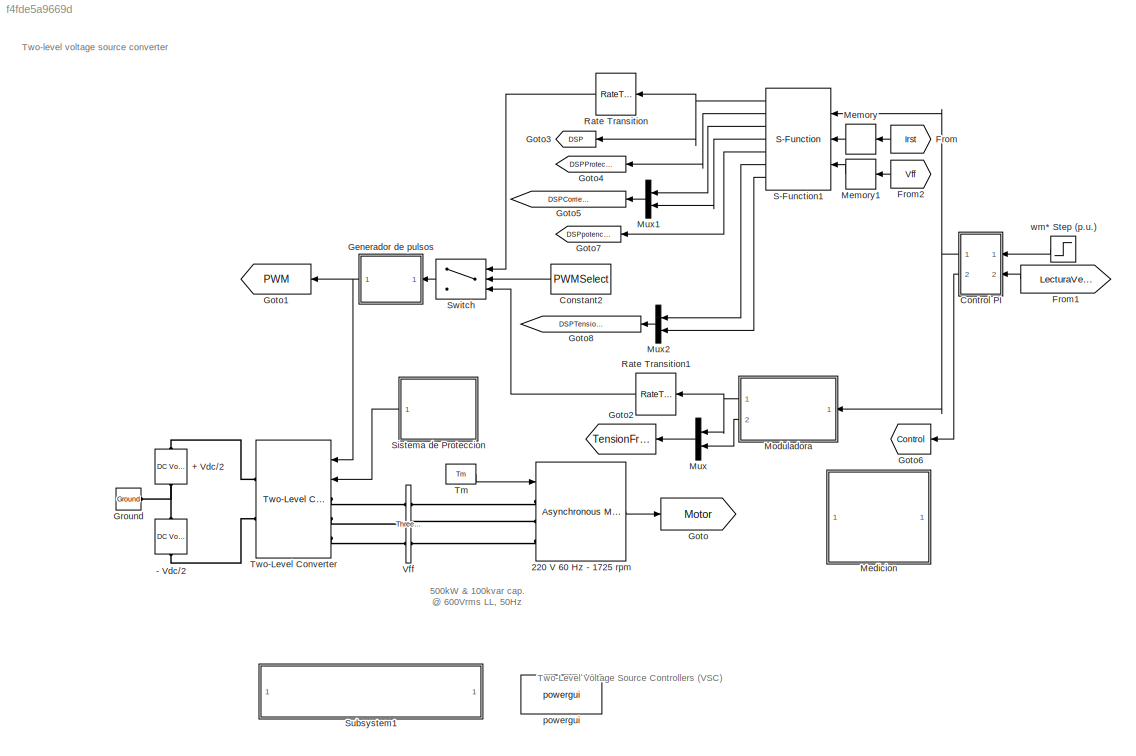
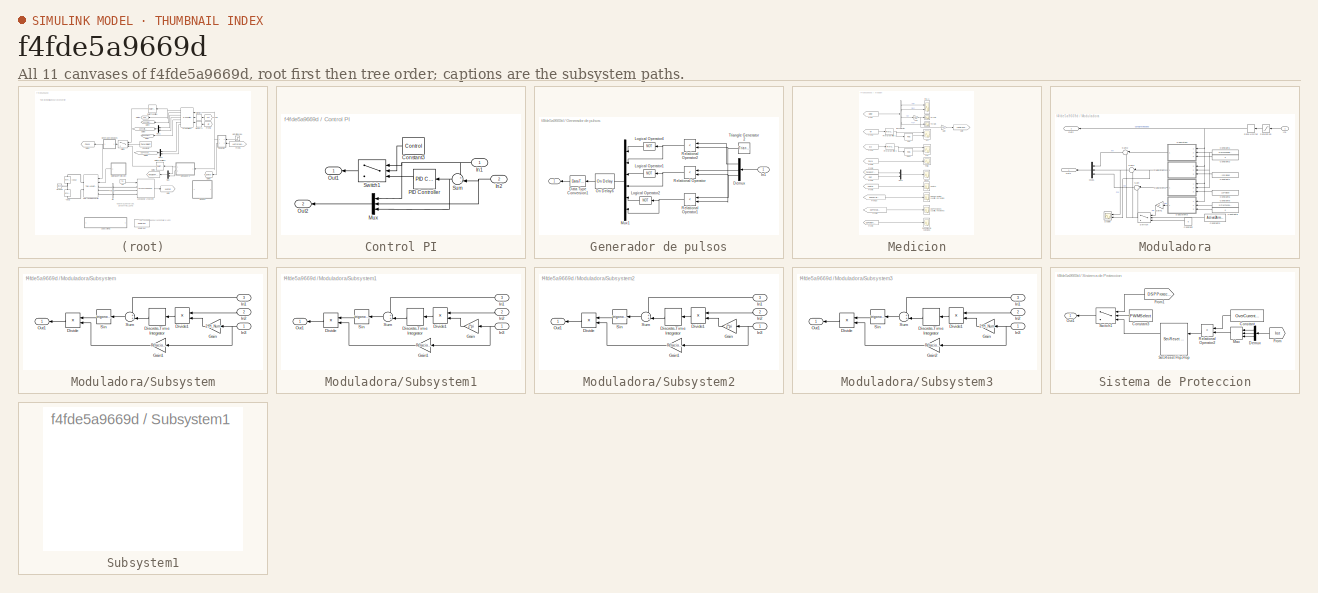
[diagram: thumbnail index - all 11 canvases of the model, root first then tree order]
MODEL slx_f4fde5a9669d
KIND model
CONFIG AbsTol = auto
CONFIG EnableMultiTasking = off
CONFIG FixedStep = StepTime
CONFIG InitFcn = clear all;\nclc;\nmex Moduladora.c;\n\n%% Parametros Simulacion\nStepTime = 1.6e-6;\nSimulationTime = 2;\nConstanteTiempo = 159e-6;\n\n%% Motor\nP = 186.5;\nVff = 220;\nFrecFundamental =  60;\nVelocidadMotor = 1800;\nParPolos = 2;\nRs = 11.05;\nLs = 3.164e-3;\nRr = 6.11;\nLr = Ls;\nLm = 293.94e-3;\nInercia = 0.0005;\nTm = 0.05;\n\n%% Consigna Velocidad\nvelocidadInicial=600/VelocidadMotor;\nvelocidadStepTime = 1;\nvelocida...<+722ch>
CONFIG MaxStep = auto
CONFIG MinStep = auto
CONFIG PreLoadFcn = clear all;\nclc;\nmex Moduladora.c;\n\n%% Parametros Simulacion\nStepTime = 1.6e-6;\nSimulationTime = 2;\nConstanteTiempo = 159e-6;\n\n%% Motor\nP = 186.5;\nVff = 220;\nFrecFundamental =  60;\nVelocidadMotor = 1800;\nParPolos = 2;\nRs = 11.05;\nLs = 3.164e-3;\nRr = 6.11;\nLr = Ls;\nLm = 293.94e-3;\nInercia = 0.0005;\nTm = 0.05;\n\n%% Consigna Velocidad\nvelocidadInicial=1725/VelocidadMotor;\nvelocidadStepTime = 1;\nvelocid...<+724ch>
CONFIG RelTol = 1e-4
CONFIG SampleTimeConstraint = Unconstrained
CONFIG SolverName = ode3
CONFIG StartTime = 0.0
CONFIG StopTime = SimulationTime
BLOCK [Reference] + Vdc//2  REF=spsDCVoltageSourceLib/DC Voltage Source
  NameLocation = right
  Ports = [0, 0, 0, 0, 0, 1, 1]
  SourceBlock = spsDCVoltageSourceLib/DC Voltage Source
  SourceProductBaseCode = PS
  SourceType = DC Voltage Source
BLOCK [Reference] - Vdc//2  REF=spsDCVoltageSourceLib/DC Voltage Source
  NameLocation = right
  Ports = [0, 0, 0, 0, 0, 1, 1]
  SourceBlock = spsDCVoltageSourceLib/DC Voltage Source
  SourceProductBaseCode = PS
  SourceType = DC Voltage Source
BLOCK [Reference] 220 V 60 Hz - 1725 rpm  REF=spsAsynchronousMachineSIUnitsLib/Asynchronous Machine
SI Units
  AttributesFormatString = \n
  Ports = [1, 1, 0, 0, 0, 3]
  SourceBlock = spsAsynchronousMachineSIUnitsLib/Asynchronous Machine\nSI Units
  SourceProductBaseCode = PS
  SourceType = Asynchronous Machine
BLOCK [Constant] Constant2
  NameLocation = top
  Value = PWMSelect
BLOCK [SubSystem] Control PI
  NameLocation = top
  Ports = [2, 2]
  RequestExecContextInheritance = off
  SystemSampleTime = Tconmut
  TreatAsAtomicUnit = on
BLOCK [Constant] Control PI/Constant3
  NameLocation = top
  Value = Control
BLOCK [Inport] Control PI/In1
BLOCK [Inport] Control PI/In2
  Port = 2
BLOCK [Mux] Control PI/Mux
  DisplayOption = bar
  Inputs = 3
  NameLocation = top
  Ports = [3, 1]
BLOCK [Outport] Control PI/Out1
BLOCK [Outport] Control PI/Out2
  Port = 2
BLOCK [Reference] Control PI/PID Controller  REF=pid_lib/PID Controller
  NameLocation = top
  Ports = [1, 1]
  SourceBlock = pid_lib/PID Controller
  SourceProductBaseCode = SL
  SourceType = PID 1dof
BLOCK [Sum] Control PI/Sum
  Inputs = +-|
  NameLocation = top
  Ports = [2, 1]
BLOCK [Switch] Control PI/Switch1
  Criteria = u2 > Threshold
  InputSameDT = off
  NameLocation = top
  SaturateOnIntegerOverflow = off
BLOCK [From] From
  GotoTag = Irst
  NameLocation = top
  TagVisibility = global
BLOCK [From] From1
  GotoTag = LecturaVelMot
  NameLocation = top
  TagVisibility = global
BLOCK [From] From2
  GotoTag = Vff
  NameLocation = top
  TagVisibility = global
BLOCK [SubSystem] Generador de pulsos
  NameLocation = top
  Ports = [1, 1]
  RequestExecContextInheritance = off
  SystemSampleTime = Tconmut
BLOCK [Outport] Generador de pulsos/  
BLOCK [DataTypeConversion] Generador de pulsos/Data Type Conversion1
  NameLocation = top
  OutDataTypeStr = double
  RndMeth = Floor
  SaturateOnIntegerOverflow = off
BLOCK [Demux] Generador de pulsos/Demux
  NameLocation = top
  Outputs = 3
  Ports = [1, 3]
BLOCK [Inport] Generador de pulsos/In1
  IconDisplay = Signal name
  NameLocation = top
BLOCK [Logic] Generador de pulsos/Logical Operator1
  NameLocation = top
  Operator = NOT
  Ports = [1, 1]
BLOCK [Logic] Generador de pulsos/Logical Operator2
  NameLocation = top
  Operator = NOT
  Ports = [1, 1]
BLOCK [Logic] Generador de pulsos/Logical Operator4
  NameLocation = top
  Operator = NOT
  Ports = [1, 1]
BLOCK [Mux] Generador de pulsos/Mux1
  DisplayOption = bar
  Inputs = 6
  NameLocation = top
  Ports = [6, 1]
BLOCK [Reference] Generador de pulsos/On Delay6  REF=spsOnDelayLib/On Delay
  NameLocation = top
  Ports = [1, 1]
  SourceBlock = spsOnDelayLib/On Delay
  SourceProductBaseCode = PS
  SourceType = On/Off Delay
BLOCK [RelationalOperator] Generador de pulsos/Relational Operator
  InputSameDT = off
  NameLocation = top
  Operator = <
  OutDataTypeStr = boolean
  Ports = [2, 1]
  RndMeth = Simplest
BLOCK [RelationalOperator] Generador de pulsos/Relational Operator1
  InputSameDT = off
  NameLocation = top
  Operator = <
  OutDataTypeStr = boolean
  Ports = [2, 1]
  RndMeth = Simplest
BLOCK [RelationalOperator] Generador de pulsos/Relational Operator2
  InputSameDT = off
  NameLocation = top
  Operator = <
  OutDataTypeStr = boolean
  Ports = [2, 1]
  RndMeth = Simplest
BLOCK [Reference] Generador de pulsos/Triangle Generator2  REF=spsTriangleGeneratorLib/Triangle
Generator
  NameLocation = top
  Ports = [0, 1]
  SourceBlock = spsTriangleGeneratorLib/Triangle\nGenerator
  SourceProductBaseCode = PS
  SourceType = Triangle Generator
BLOCK [Goto] Goto
  GotoTag = Motor
  TagVisibility = global
BLOCK [Goto] Goto1
  GotoTag = PWM
  NameLocation = top
  TagVisibility = global
BLOCK [Goto] Goto2
  GotoTag = TensionFrec
  NameLocation = top
  TagVisibility = global
BLOCK [Goto] Goto3
  GotoTag = DSP
  NameLocation = top
  TagVisibility = global
BLOCK [Goto] Goto4
  GotoTag = DSPProtecion
  NameLocation = top
  TagVisibility = global
BLOCK [Goto] Goto5
  GotoTag = DSPCorrientesQyError
  NameLocation = top
  TagVisibility = global
BLOCK [Goto] Goto6
  GotoTag = Control
  NameLocation = top
  TagVisibility = global
BLOCK [Goto] Goto7
  GotoTag = DSPpotencia
  NameLocation = top
  TagVisibility = global
BLOCK [Goto] Goto8
  GotoTag = DSPTensionesQyError
  NameLocation = top
  TagVisibility = global
BLOCK [Reference] Ground  REF=spsGroundLib/Ground
  Ports = [0, 0, 0, 0, 0, 1]
  SourceBlock = spsGroundLib/Ground
  SourceProductBaseCode = PS
  SourceType = Ground
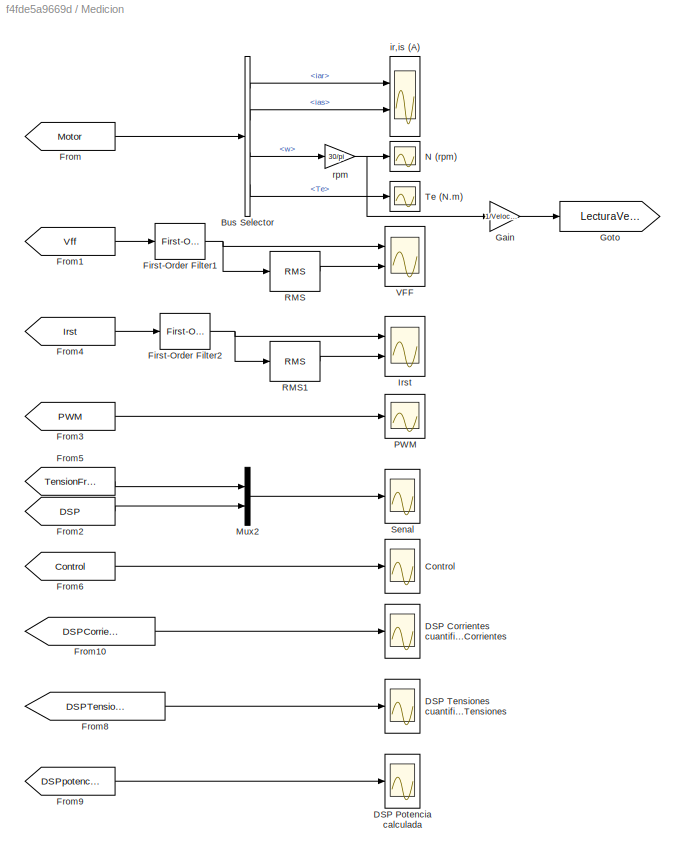
BLOCK [SubSystem] Medicion
  Ports = []
  RequestExecContextInheritance = off
BLOCK [BusSelector] Medicion/Bus Selector
  OutputSignals = iar,ias,w,Te
  Ports = [1, 4]
BLOCK [Scope] Medicion/Control
  Floating = off
  NameLocation = right
  NumInputPorts = 1
  Ports = [1]
  ScopeSpecificationString = Simulink.scopes.TimeScopeBlockCfg('CurrentConfiguration', extmgr.ConfigurationSet(extmgr.Configuration('Core','General UI',true),extmgr.Configuration('Core','Source UI',true),extmgr.Configuration('Sources','WiredSimulink',true,'DataLoggingVariableName','ScopeData1','DataLoggingSaveFormat','StructureWithTime','DataLoggingDecimation','1','DataLoggingDecimateData',true),extmgr.Configuration('Visuals'...<+2460ch>
BLOCK [Scope] Medicion/DSP Corrientes cuantificadas y Error Corrientes
  Floating = off
  NameLocation = right
  NumInputPorts = 1
  Ports = [1]
  ScopeSpecificationString = Simulink.scopes.TimeScopeBlockCfg('CurrentConfiguration', extmgr.ConfigurationSet(extmgr.Configuration('Core','General UI',true),extmgr.Configuration('Core','Source UI',true),extmgr.Configuration('Sources','WiredSimulink',true,'DataLoggingVariableName','ScopeData1','DataLoggingSaveFormat','StructureWithTime','DataLoggingDecimation','1','DataLoggingDecimateData',true),extmgr.Configuration('Visuals'...<+2407ch>
BLOCK [Scope] Medicion/DSP Potencia calculada
  Floating = off
  NameLocation = right
  NumInputPorts = 1
  Ports = [1]
  ScopeSpecificationString = Simulink.scopes.TimeScopeBlockCfg('CurrentConfiguration', extmgr.ConfigurationSet(extmgr.Configuration('Core','General UI',true),extmgr.Configuration('Core','Source UI',true),extmgr.Configuration('Sources','WiredSimulink',true,'DataLoggingVariableName','ScopeData2','DataLoggingSaveFormat','StructureWithTime','DataLoggingDecimation','1','DataLoggingDecimateData',true),extmgr.Configuration('Visuals'...<+2477ch>
BLOCK [Scope] Medicion/DSP Tensiones cuantificadas y Error Tensiones
  Floating = off
  NameLocation = right
  NumInputPorts = 1
  Ports = [1]
  ScopeSpecificationString = Simulink.scopes.TimeScopeBlockCfg('CurrentConfiguration', extmgr.ConfigurationSet(extmgr.Configuration('Core','General UI',true),extmgr.Configuration('Core','Source UI',true),extmgr.Configuration('Sources','WiredSimulink',true,'DataLoggingVariableName','ScopeData1','DataLoggingSaveFormat','StructureWithTime','DataLoggingDecimation','1','DataLoggingDecimateData',true),extmgr.Configuration('Visuals'...<+2536ch>
BLOCK [Reference] Medicion/First-Order Filter1  REF=spsFirstOrderFilterLib/First-Order
Filter
  Ports = [1, 1]
  SourceBlock = spsFirstOrderFilterLib/First-Order\nFilter
  SourceProductBaseCode = PS
  SourceType = First-Order Filter
BLOCK [Reference] Medicion/First-Order Filter2  REF=spsFirstOrderFilterLib/First-Order
Filter
  Ports = [1, 1]
  SourceBlock = spsFirstOrderFilterLib/First-Order\nFilter
  SourceProductBaseCode = PS
  SourceType = First-Order Filter
BLOCK [From] Medicion/From
  GotoTag = Motor
  TagVisibility = global
BLOCK [From] Medicion/From1
  GotoTag = Vff
  TagVisibility = global
BLOCK [From] Medicion/From10
  GotoTag = DSPCorrientesQyError
  TagVisibility = global
BLOCK [From] Medicion/From2
  GotoTag = DSP
  TagVisibility = global
BLOCK [From] Medicion/From3
  GotoTag = PWM
  TagVisibility = global
BLOCK [From] Medicion/From4
  GotoTag = Irst
  TagVisibility = global
BLOCK [From] Medicion/From5
  GotoTag = TensionFrec
  TagVisibility = global
BLOCK [From] Medicion/From6
  GotoTag = Control
  TagVisibility = global
BLOCK [From] Medicion/From8
  GotoTag = DSPTensionesQyError
  TagVisibility = global
BLOCK [From] Medicion/From9
  GotoTag = DSPpotencia
  TagVisibility = global
BLOCK [Gain] Medicion/Gain
  Gain = 1/VelocidadMotor
BLOCK [Goto] Medicion/Goto
  GotoTag = LecturaVelMot
  TagVisibility = global
BLOCK [Scope] Medicion/Irst
  Floating = off
  NameLocation = right
  NumInputPorts = 2
  Ports = [2]
  ScopeSpecificationString = Simulink.scopes.TimeScopeBlockCfg('CurrentConfiguration', extmgr.ConfigurationSet(extmgr.Configuration('Core','General UI',true),extmgr.Configuration('Core','Source UI',true),extmgr.Configuration('Sources','WiredSimulink',true,'DataLoggingVariableName','Irst','DataLoggingSaveFormat','StructureWithTime','DataLoggingDecimation','1','DataLoggingDecimateData',true,'DataLogging',true),extmgr.Configurat...<+2542ch>
BLOCK [Mux] Medicion/Mux2
  DisplayOption = bar
  Inputs = 2
  Ports = [2, 1]
BLOCK [Scope] Medicion/N (rpm)
  Floating = off
  NameLocation = right
  NumInputPorts = 1
  Ports = [1]
  ScopeSpecificationString = Simulink.scopes.TimeScopeBlockCfg('CurrentConfiguration', extmgr.ConfigurationSet(extmgr.Configuration('Core','General UI',true),extmgr.Configuration('Core','Source UI',true),extmgr.Configuration('Sources','WiredSimulink',true,'DataLoggingSaveFormat','Array','DataLoggingDecimation','1','DataLoggingDecimateData',true,'DataLoggingVariableName','ScopeData1'),extmgr.Configuration('Visuals','Time Domai...<+1968ch>
BLOCK [Scope] Medicion/PWM
  Floating = off
  NameLocation = right
  NumInputPorts = 1
  Ports = [1]
  ScopeSpecificationString = Simulink.scopes.TimeScopeBlockCfg('CurrentConfiguration', extmgr.ConfigurationSet(extmgr.Configuration('Core','General UI',true),extmgr.Configuration('Core','Source UI',true),extmgr.Configuration('Sources','WiredSimulink',true,'DataLoggingVariableName','ScopeData2','DataLoggingSaveFormat','StructureWithTime','DataLoggingDecimation','1','DataLoggingDecimateData',true),extmgr.Configuration('Visuals'...<+2566ch>
BLOCK [Reference] Medicion/RMS  REF=spsRMSLib/RMS
  Ports = [1, 1]
  SourceBlock = spsRMSLib/RMS
  SourceProductBaseCode = PS
  SourceType = RMS
BLOCK [Reference] Medicion/RMS1  REF=spsRMSLib/RMS
  Ports = [1, 1]
  SourceBlock = spsRMSLib/RMS
  SourceProductBaseCode = PS
  SourceType = RMS
BLOCK [Scope] Medicion/Senal
  Floating = off
  NameLocation = right
  NumInputPorts = 1
  Ports = [1]
  ScopeSpecificationString = Simulink.scopes.TimeScopeBlockCfg('CurrentConfiguration', extmgr.ConfigurationSet(extmgr.Configuration('Core','General UI',true),extmgr.Configuration('Core','Source UI',true),extmgr.Configuration('Sources','WiredSimulink',true,'DataLoggingVariableName','ScopeData1','DataLoggingSaveFormat','StructureWithTime','DataLoggingDecimation','1','DataLoggingDecimateData',true),extmgr.Configuration('Visuals'...<+2473ch>
BLOCK [Scope] Medicion/Te (N.m)
  Floating = off
  NameLocation = right
  NumInputPorts = 1
  Ports = [1]
  ScopeSpecificationString = Simulink.scopes.TimeScopeBlockCfg('CurrentConfiguration', extmgr.ConfigurationSet(extmgr.Configuration('Core','General UI',true),extmgr.Configuration('Core','Source UI',true),extmgr.Configuration('Sources','WiredSimulink',true,'DataLoggingSaveFormat','Array','DataLoggingDecimation','1','DataLoggingDecimateData',true,'DataLoggingVariableName','ScopeData2'),extmgr.Configuration('Visuals','Time Domai...<+1629ch>
BLOCK [Scope] Medicion/VFF
  Floating = off
  NameLocation = right
  NumInputPorts = 2
  Ports = [2]
  ScopeSpecificationString = Simulink.scopes.TimeScopeBlockCfg('CurrentConfiguration', extmgr.ConfigurationSet(extmgr.Configuration('Core','General UI',true),extmgr.Configuration('Core','Source UI',true),extmgr.Configuration('Sources','WiredSimulink',true,'DataLoggingVariableName','Vff','DataLoggingSaveFormat','StructureWithTime','DataLoggingDecimation','1','DataLoggingDecimateData',true,'DataLogging',true),extmgr.Configurati...<+3092ch>
BLOCK [Scope] Medicion/ir,is (A)
  Floating = off
  NameLocation = right
  NumInputPorts = 2
  Ports = [2]
  ScopeSpecificationString = Simulink.scopes.TimeScopeBlockCfg('CurrentConfiguration', extmgr.ConfigurationSet(extmgr.Configuration('Core','General UI',true),extmgr.Configuration('Core','Source UI',true),extmgr.Configuration('Sources','WiredSimulink',true,'DataLoggingSaveFormat','Array','DataLoggingDecimation','1','DataLoggingDecimateData',true,'DataLoggingVariableName','ScopeData3'),extmgr.Configuration('Visuals','Time Domai...<+2349ch>
BLOCK [Gain] Medicion/rpm
  Gain = 30/pi
  OutDataTypeStr = Inherit: Same as input
  ParamDataTypeStr = Inherit: Same as input
  SaturateOnIntegerOverflow = on
BLOCK [Memory] Memory
  LinearizeAsDelay = on
  NameLocation = top
BLOCK [Memory] Memory1
  LinearizeAsDelay = on
  NameLocation = top
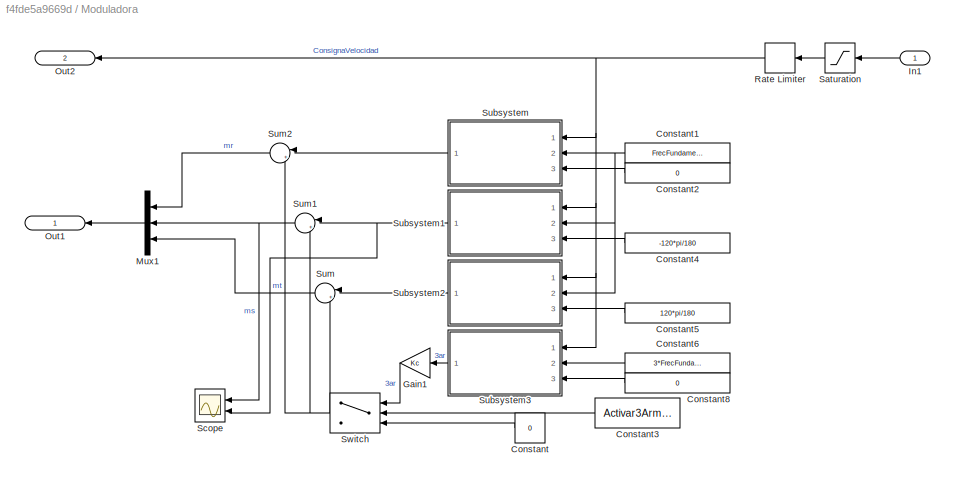
BLOCK [SubSystem] Moduladora
  NameLocation = top
  Ports = [1, 2]
  RequestExecContextInheritance = off
  SystemSampleTime = Tconmut
  TreatAsAtomicUnit = on
BLOCK [Constant] Moduladora/Constant
  NameLocation = top
  Value = 0
BLOCK [Constant] Moduladora/Constant1
  Value = FrecFundamental
BLOCK [Constant] Moduladora/Constant2
  Value = 0
BLOCK [Constant] Moduladora/Constant3
  NameLocation = top
  Value = Activar3Armonico
BLOCK [Constant] Moduladora/Constant4
  Value = -120*pi/180
BLOCK [Constant] Moduladora/Constant5
  Value = 120*pi/180
BLOCK [Constant] Moduladora/Constant6
  Value = 3*FrecFundamental
BLOCK [Constant] Moduladora/Constant8
  Value = 0
BLOCK [Gain] Moduladora/Gain1
  Gain = Kc
  NameLocation = top
BLOCK [Inport] Moduladora/In1
  NameLocation = top
BLOCK [Mux] Moduladora/Mux1
  DisplayOption = bar
  Inputs = 3
  NameLocation = top
  Ports = [3, 1]
BLOCK [Outport] Moduladora/Out1
  IconDisplay = Signal name
  NameLocation = top
BLOCK [Outport] Moduladora/Out2
  IconDisplay = Signal name
  NameLocation = top
  Port = 2
BLOCK [RateLimiter] Moduladora/Rate Limiter
  FallingSlewLimit = -RampaAceleracion
  NameLocation = top
  RisingSlewLimit = RampaAceleracion
  SampleTimeMode = inherited
BLOCK [Saturate] Moduladora/Saturation
  LowerLimit = OffSet
  NameLocation = top
  UpperLimit = 1
BLOCK [Scope] Moduladora/Scope
  Floating = off
  NameLocation = top
  NumInputPorts = 2
  Ports = [2]
  ScopeSpecificationString = Simulink.scopes.TimeScopeBlockCfg('CurrentConfiguration', extmgr.ConfigurationSet(extmgr.Configuration('Core','General UI',true),extmgr.Configuration('Core','Source UI',true),extmgr.Configuration('Sources','WiredSimulink',true,'DataLoggingVariableName','ScopeData1'),extmgr.Configuration('Visuals','Time Domain',true,'SerializedDisplays',{struct('MinYLimReal','-1.4425','MaxYLimReal','1.4425','YLabel...<+2237ch>
BLOCK [SubSystem] Moduladora/Subsystem
  NameLocation = top
  Ports = [3, 1]
  RequestExecContextInheritance = off
BLOCK [DiscreteIntegrator] Moduladora/Subsystem/Discrete-Time Integrator
  ICPrevOutput = DiscIntNeverNeededParam
  ICPrevScaledInput = DiscIntNeverNeededParam
  InitialConditionSetting = Auto
  NameLocation = top
  Ports = [1, 1]
  SampleTime = Tconmut
BLOCK [Product] Moduladora/Subsystem/Divide
  Inputs = **
  NameLocation = top
  Ports = [2, 1]
BLOCK [Product] Moduladora/Subsystem/Divide1
  Inputs = **
  NameLocation = top
  Ports = [2, 1]
BLOCK [Gain] Moduladora/Subsystem/Gain
  Gain = 2*PI_Num
  NameLocation = top
BLOCK [Gain] Moduladora/Subsystem/Gain1
  Gain = RelacionVF
  NameLocation = top
BLOCK [Inport] Moduladora/Subsystem/In1
  NameLocation = top
  Port = 3
BLOCK [Inport] Moduladora/Subsystem/In2
  Port = 2
BLOCK [Inport] Moduladora/Subsystem/In3
  NameLocation = top
BLOCK [Outport] Moduladora/Subsystem/Out1
  NameLocation = top
BLOCK [Trigonometry] Moduladora/Subsystem/Sin
  NameLocation = top
  Ports = [1, 1]
BLOCK [Sum] Moduladora/Subsystem/Sum
  Inputs = ++|
  NameLocation = top
  Ports = [2, 1]
BLOCK [SubSystem] Moduladora/Subsystem1
  NameLocation = top
  Ports = [3, 1]
  RequestExecContextInheritance = off
BLOCK [DiscreteIntegrator] Moduladora/Subsystem1/Discrete-Time Integrator
  ICPrevOutput = DiscIntNeverNeededParam
  ICPrevScaledInput = DiscIntNeverNeededParam
  InitialConditionSetting = Auto
  NameLocation = top
  Ports = [1, 1]
  SampleTime = Tconmut
BLOCK [Product] Moduladora/Subsystem1/Divide
  Inputs = **
  NameLocation = top
  Ports = [2, 1]
BLOCK [Product] Moduladora/Subsystem1/Divide1
  Inputs = **
  NameLocation = top
  Ports = [2, 1]
BLOCK [Gain] Moduladora/Subsystem1/Gain
  Gain = 2*pi
  NameLocation = top
BLOCK [Gain] Moduladora/Subsystem1/Gain1
  Gain = RelacionVF
  NameLocation = top
BLOCK [Inport] Moduladora/Subsystem1/In1
  NameLocation = top
  Port = 3
BLOCK [Inport] Moduladora/Subsystem1/In2
  Port = 2
BLOCK [Inport] Moduladora/Subsystem1/In3
  NameLocation = top
BLOCK [Outport] Moduladora/Subsystem1/Out1
  NameLocation = top
BLOCK [Trigonometry] Moduladora/Subsystem1/Sin
  NameLocation = top
  Ports = [1, 1]
BLOCK [Sum] Moduladora/Subsystem1/Sum
  Inputs = ++|
  NameLocation = top
  Ports = [2, 1]
BLOCK [SubSystem] Moduladora/Subsystem2
  NameLocation = top
  Ports = [3, 1]
  RequestExecContextInheritance = off
BLOCK [DiscreteIntegrator] Moduladora/Subsystem2/Discrete-Time Integrator
  ICPrevOutput = DiscIntNeverNeededParam
  ICPrevScaledInput = DiscIntNeverNeededParam
  InitialConditionSetting = Auto
  NameLocation = top
  Ports = [1, 1]
  SampleTime = Tconmut
BLOCK [Product] Moduladora/Subsystem2/Divide
  Inputs = **
  NameLocation = top
  Ports = [2, 1]
BLOCK [Product] Moduladora/Subsystem2/Divide1
  Inputs = **
  NameLocation = top
  Ports = [2, 1]
BLOCK [Gain] Moduladora/Subsystem2/Gain
  Gain = 2*pi
  NameLocation = top
BLOCK [Gain] Moduladora/Subsystem2/Gain1
  Gain = RelacionVF
  NameLocation = top
BLOCK [Inport] Moduladora/Subsystem2/In1
  NameLocation = top
  Port = 3
BLOCK [Inport] Moduladora/Subsystem2/In2
  Port = 2
BLOCK [Inport] Moduladora/Subsystem2/In3
  NameLocation = top
BLOCK [Outport] Moduladora/Subsystem2/Out1
  NameLocation = top
BLOCK [Trigonometry] Moduladora/Subsystem2/Sin
  NameLocation = top
  Ports = [1, 1]
BLOCK [Sum] Moduladora/Subsystem2/Sum
  Inputs = ++|
  NameLocation = top
  Ports = [2, 1]
BLOCK [SubSystem] Moduladora/Subsystem3
  NameLocation = top
  Ports = [3, 1]
  RequestExecContextInheritance = off
BLOCK [DiscreteIntegrator] Moduladora/Subsystem3/Discrete-Time Integrator
  ICPrevOutput = DiscIntNeverNeededParam
  ICPrevScaledInput = DiscIntNeverNeededParam
  InitialConditionSetting = Auto
  NameLocation = top
  Ports = [1, 1]
  SampleTime = Tconmut
BLOCK [Product] Moduladora/Subsystem3/Divide
  Inputs = **
  NameLocation = top
  Ports = [2, 1]
BLOCK [Product] Moduladora/Subsystem3/Divide1
  Inputs = **
  NameLocation = top
  Ports = [2, 1]
BLOCK [Gain] Moduladora/Subsystem3/Gain
  Gain = 2*PI_Num
  NameLocation = top
BLOCK [Gain] Moduladora/Subsystem3/Gain2
  Gain = RelacionVF
  NameLocation = top
BLOCK [Inport] Moduladora/Subsystem3/In1
  NameLocation = top
  Port = 3
BLOCK [Inport] Moduladora/Subsystem3/In2
  Port = 2
BLOCK [Inport] Moduladora/Subsystem3/In3
  NameLocation = top
BLOCK [Outport] Moduladora/Subsystem3/Out1
  NameLocation = top
BLOCK [Trigonometry] Moduladora/Subsystem3/Sin
  NameLocation = top
  Ports = [1, 1]
BLOCK [Sum] Moduladora/Subsystem3/Sum
  Inputs = ++|
  NameLocation = top
  Ports = [2, 1]
BLOCK [Sum] Moduladora/Sum
  Inputs = |++
  NameLocation = top
  Ports = [2, 1]
BLOCK [Sum] Moduladora/Sum1
  Inputs = |++
  NameLocation = top
  Ports = [2, 1]
BLOCK [Sum] Moduladora/Sum2
  Inputs = |++
  NameLocation = top
  Ports = [2, 1]
BLOCK [Switch] Moduladora/Switch
  Criteria = u2 > Threshold
  InputSameDT = off
  NameLocation = top
  SaturateOnIntegerOverflow = off
BLOCK [Mux] Mux
  DisplayOption = bar
  Inputs = 2
  NameLocation = top
  Ports = [2, 1]
BLOCK [Mux] Mux1
  DisplayOption = bar
  Inputs = 2
  NameLocation = top
  Ports = [2, 1]
BLOCK [Mux] Mux2
  DisplayOption = bar
  Inputs = 2
  NameLocation = top
  Ports = [2, 1]
BLOCK [RateTransition] Rate Transition
  NameLocation = top
BLOCK [RateTransition] Rate Transition1
  NameLocation = top
BLOCK [S-Function] S-Function1
  EnableBusSupport = off
  FunctionName = Moduladora
  NameLocation = top
  Parameters = Tconmut NBits OffSet RampaAceleracion FrecFundamental FrecConmut Kc limiteSuperior Activar3Armonico OverCurrentLimit Vdc Vff
  Ports = [3, 7]
  SFcnIsStateOwnerBlock = off
  SFunctionDeploymentMode = off
BLOCK [SubSystem] Sistema de Proteccion
  NameLocation = top
  Ports = [0, 1]
  RequestExecContextInheritance = off
BLOCK [Constant] Sistema de Proteccion/Constant
  NameLocation = top
  Value = OverCurrentLimit
BLOCK [Constant] Sistema de Proteccion/Constant3
  NameLocation = top
  Value = PWMSelect
BLOCK [Demux] Sistema de Proteccion/Demux
  NameLocation = top
  Outputs = 3
  Ports = [1, 3]
BLOCK [From] Sistema de Proteccion/From
  GotoTag = Irst
  NameLocation = top
  TagVisibility = global
BLOCK [From] Sistema de Proteccion/From1
  GotoTag = DSPProtecion
  NameLocation = top
  TagVisibility = global
BLOCK [MinMax] Sistema de Proteccion/Max
  Function = max
  Inputs = 3
  NameLocation = top
  Ports = [3, 1]
BLOCK [Outport] Sistema de Proteccion/Out1
BLOCK [RelationalOperator] Sistema de Proteccion/Relational Operator2
  InputSameDT = off
  NameLocation = top
  Operator = <
  OutDataTypeStr = boolean
  Ports = [2, 1]
  RndMeth = Simplest
BLOCK [Reference] Sistema de Proteccion/Set-Reset Flip-Flop  REF=eeGeneralControl/Set-Reset Flip-Flop
  NameLocation = top
  Ports = [2, 2]
  SourceBlock = eeGeneralControl/Set-Reset Flip-Flop
  SourceProductBaseCode = PS
  SourceType = Set-Reset Flip-Flop
BLOCK [Switch] Sistema de Proteccion/Switch1
  Criteria = u2 > Threshold
  InputSameDT = off
  NameLocation = top
  SaturateOnIntegerOverflow = off
BLOCK [SubSystem] Subsystem1
  OpenFcn = t=ScopeData1.time;\nFundFreq=50;\nMaxFreq=5000;\nFFTDATA = power_fftscope(ScopeData1);\nFFTDATA.input=1;\nFFTDATA.signal=1;\nFFTDATA.startTime='last';\nFFTDATA.cycles=1;\nFFTDATA.fundamental=FundFreq;\nFFTDATA.maxFrequency=MaxFreq;\nFFTDATA.THDmaxFrequency=MaxFreq;\nFFTDATA.THDbase='fund';\npower_fftscope(FFTDATA);\nxlabel('Ia prim 6-pulse');\nScreenS=get(0,'Screensize');\nx0=ScreenS(3); y0=ScreenS(4);\nPositionP...<+545ch>
  Ports = []
  RequestExecContextInheritance = off
BLOCK [Switch] Switch
  Criteria = u2 > Threshold
  InputSameDT = off
  NameLocation = top
  SaturateOnIntegerOverflow = off
BLOCK [Constant] Tm
  Value = Tm
BLOCK [Reference] Two-Level Converter  REF=spsTwoLevelConverterLib/Two-Level Converter
  Ports = [2, 0, 0, 0, 0, 3, 2]
  SourceBlock = spsTwoLevelConverterLib/Two-Level Converter
  SourceProductBaseCode = PS
  SourceType = Two-Level Converter
BLOCK [Reference] Vff  REF=spsThreePhaseVIMeasurementLib/Three-Phase
V-I Measurement
  Ports = [0, 0, 0, 0, 0, 3, 3]
  SourceBlock = spsThreePhaseVIMeasurementLib/Three-Phase\nV-I Measurement
  SourceProductBaseCode = PS
  SourceType = Three-Phase VI Measurement
BLOCK [Reference] powergui  REF=spspowerguiLib/powergui
  Ports = []
  Priority = 1
  SourceBlock = spspowerguiLib/powergui
  SourceProductBaseCode = PS
  SourceType = PSB option menu block
BLOCK [Step] wm* Step (p.u.)
  After = velocidadFinal
  Before = velocidadInicial
  NameLocation = right
  SampleTime = StepTime
  Time = velocidadStepTime
ANNOTATION (root): 500kW & 100kvar cap. @ 600Vrms LL, 50Hz
ANNOTATION (root): Two-Level Voltage Source Controllers (VSC)
ANNOTATION (root): Two-level voltage source converter
LINE 220 V 60 Hz - 1725 rpm:1 -> Goto:1
LINE Constant2:1 -> Switch:2
LINE Control PI/Constant3:1 -> Control PI/Switch1:2
NET Control PI/In1:1 -> Control PI/Mux:1, Control PI/Sum:1, Control PI/Switch1:1
NET Control PI/In2:1 -> Control PI/Mux:2, Control PI/Sum:2
LINE Control PI/Mux:1 -> Control PI/Out2:1
LINE Control PI/PID Controller:1 -> Control PI/Switch1:3
NET Control PI/Sum:1 -> Control PI/Mux:3, Control PI/PID Controller:1
LINE Control PI/Switch1:1 -> Control PI/Out1:1
NET Control PI:1 -> Moduladora:1, S-Function1:1
LINE Control PI:2 -> Goto6:1
LINE From1:1 -> Control PI:2
LINE From2:1 -> Memory1:1
LINE From:1 -> Memory:1
LINE Generador de pulsos/Data Type Conversion1:1 -> Generador de pulsos/  :1
LINE Generador de pulsos/Demux:1 -> Generador de pulsos/Relational Operator2:1
LINE Generador de pulsos/Demux:2 -> Generador de pulsos/Relational Operator:1
LINE Generador de pulsos/Demux:3 -> Generador de pulsos/Relational Operator1:1
LINE Generador de pulsos/In1:1 -> Generador de pulsos/Demux:1
LINE Generador de pulsos/Logical Operator1:1 -> Generador de pulsos/Mux1:3
LINE Generador de pulsos/Logical Operator2:1 -> Generador de pulsos/Mux1:5
LINE Generador de pulsos/Logical Operator4:1 -> Generador de pulsos/Mux1:1
LINE Generador de pulsos/Mux1:1 -> Generador de pulsos/On Delay6:1
LINE Generador de pulsos/On Delay6:1 -> Generador de pulsos/Data Type Conversion1:1
NET Generador de pulsos/Relational Operator1:1 -> Generador de pulsos/Logical Operator2:1, Generador de pulsos/Mux1:6
NET Generador de pulsos/Relational Operator2:1 -> Generador de pulsos/Logical Operator4:1, Generador de pulsos/Mux1:2
NET Generador de pulsos/Relational Operator:1 -> Generador de pulsos/Logical Operator1:1, Generador de pulsos/Mux1:4
NET Generador de pulsos/Triangle Generator2:1 -> Generador de pulsos/Relational Operator1:2, Generador de pulsos/Relational Operator2:2, Generador de pulsos/Relational Operator:2
NET Generador de pulsos:1 -> Goto1:1, Two-Level Converter:1
LINE Medicion/Bus Selector:1 -> Medicion/ir,is (A):1
LINE Medicion/Bus Selector:2 -> Medicion/ir,is (A):2
LINE Medicion/Bus Selector:3 -> Medicion/rpm:1
LINE Medicion/Bus Selector:4 -> Medicion/Te (N.m):1
NET Medicion/First-Order Filter1:1 -> Medicion/RMS:1, Medicion/VFF:1
NET Medicion/First-Order Filter2:1 -> Medicion/Irst:1, Medicion/RMS1:1
LINE Medicion/From10:1 -> Medicion/DSP Corrientes cuantificadas y Error Corrientes:1
LINE Medicion/From1:1 -> Medicion/First-Order Filter1:1
LINE Medicion/From2:1 -> Medicion/Mux2:2
LINE Medicion/From3:1 -> Medicion/PWM:1
LINE Medicion/From4:1 -> Medicion/First-Order Filter2:1
LINE Medicion/From5:1 -> Medicion/Mux2:1
LINE Medicion/From6:1 -> Medicion/Control:1
LINE Medicion/From8:1 -> Medicion/DSP Tensiones cuantificadas y Error Tensiones:1
LINE Medicion/From9:1 -> Medicion/DSP Potencia calculada:1
LINE Medicion/From:1 -> Medicion/Bus Selector:1
LINE Medicion/Gain:1 -> Medicion/Goto:1
LINE Medicion/Mux2:1 -> Medicion/Senal:1
LINE Medicion/RMS1:1 -> Medicion/Irst:2
LINE Medicion/RMS:1 -> Medicion/VFF:2
NET Medicion/rpm:1 -> Medicion/Gain:1, Medicion/N (rpm):1
LINE Memory1:1 -> S-Function1:3
LINE Memory:1 -> S-Function1:2
NET Moduladora/Constant1:1 -> Moduladora/Subsystem1:2, Moduladora/Subsystem2:2, Moduladora/Subsystem:2
LINE Moduladora/Constant2:1 -> Moduladora/Subsystem:3
LINE Moduladora/Constant3:1 -> Moduladora/Switch:2
LINE Moduladora/Constant4:1 -> Moduladora/Subsystem1:3
LINE Moduladora/Constant5:1 -> Moduladora/Subsystem2:3
LINE Moduladora/Constant6:1 -> Moduladora/Subsystem3:2
LINE Moduladora/Constant8:1 -> Moduladora/Subsystem3:3
LINE Moduladora/Constant:1 -> Moduladora/Switch:3
LINE Moduladora/Gain1:1 -> Moduladora/Switch:1
LINE Moduladora/In1:1 -> Moduladora/Saturation:1
LINE Moduladora/Mux1:1 -> Moduladora/Out1:1
NET Moduladora/Rate Limiter:1 -> Moduladora/Out2:1, Moduladora/Subsystem1:1, Moduladora/Subsystem2:1, Moduladora/Subsystem3:1, Moduladora/Subsystem:1
LINE Moduladora/Saturation:1 -> Moduladora/Rate Limiter:1
LINE Moduladora/Subsystem/Discrete-Time Integrator:1 -> Moduladora/Subsystem/Sum:2
LINE Moduladora/Subsystem/Divide1:1 -> Moduladora/Subsystem/Discrete-Time Integrator:1
LINE Moduladora/Subsystem/Divide:1 -> Moduladora/Subsystem/Out1:1
LINE Moduladora/Subsystem/Gain1:1 -> Moduladora/Subsystem/Divide:2
LINE Moduladora/Subsystem/Gain:1 -> Moduladora/Subsystem/Divide1:2
LINE Moduladora/Subsystem/In1:1 -> Moduladora/Subsystem/Sum:1
LINE Moduladora/Subsystem/In2:1 -> Moduladora/Subsystem/Divide1:1
NET Moduladora/Subsystem/In3:1 -> Moduladora/Subsystem/Gain1:1, Moduladora/Subsystem/Gain:1
LINE Moduladora/Subsystem/Sin:1 -> Moduladora/Subsystem/Divide:1
LINE Moduladora/Subsystem/Sum:1 -> Moduladora/Subsystem/Sin:1
LINE Moduladora/Subsystem1/Discrete-Time Integrator:1 -> Moduladora/Subsystem1/Sum:2
LINE Moduladora/Subsystem1/Divide1:1 -> Moduladora/Subsystem1/Discrete-Time Integrator:1
LINE Moduladora/Subsystem1/Divide:1 -> Moduladora/Subsystem1/Out1:1
LINE Moduladora/Subsystem1/Gain1:1 -> Moduladora/Subsystem1/Divide:2
LINE Moduladora/Subsystem1/Gain:1 -> Moduladora/Subsystem1/Divide1:2
LINE Moduladora/Subsystem1/In1:1 -> Moduladora/Subsystem1/Sum:1
LINE Moduladora/Subsystem1/In2:1 -> Moduladora/Subsystem1/Divide1:1
NET Moduladora/Subsystem1/In3:1 -> Moduladora/Subsystem1/Gain1:1, Moduladora/Subsystem1/Gain:1
LINE Moduladora/Subsystem1/Sin:1 -> Moduladora/Subsystem1/Divide:1
LINE Moduladora/Subsystem1/Sum:1 -> Moduladora/Subsystem1/Sin:1
NET Moduladora/Subsystem1:1 -> Moduladora/Scope:2, Moduladora/Sum1:1
LINE Moduladora/Subsystem2/Discrete-Time Integrator:1 -> Moduladora/Subsystem2/Sum:2
LINE Moduladora/Subsystem2/Divide1:1 -> Moduladora/Subsystem2/Discrete-Time Integrator:1
LINE Moduladora/Subsystem2/Divide:1 -> Moduladora/Subsystem2/Out1:1
LINE Moduladora/Subsystem2/Gain1:1 -> Moduladora/Subsystem2/Divide:2
LINE Moduladora/Subsystem2/Gain:1 -> Moduladora/Subsystem2/Divide1:2
LINE Moduladora/Subsystem2/In1:1 -> Moduladora/Subsystem2/Sum:1
LINE Moduladora/Subsystem2/In2:1 -> Moduladora/Subsystem2/Divide1:1
NET Moduladora/Subsystem2/In3:1 -> Moduladora/Subsystem2/Gain1:1, Moduladora/Subsystem2/Gain:1
LINE Moduladora/Subsystem2/Sin:1 -> Moduladora/Subsystem2/Divide:1
LINE Moduladora/Subsystem2/Sum:1 -> Moduladora/Subsystem2/Sin:1
LINE Moduladora/Subsystem2:1 -> Moduladora/Sum:1
LINE Moduladora/Subsystem3/Discrete-Time Integrator:1 -> Moduladora/Subsystem3/Sum:2
LINE Moduladora/Subsystem3/Divide1:1 -> Moduladora/Subsystem3/Discrete-Time Integrator:1
LINE Moduladora/Subsystem3/Divide:1 -> Moduladora/Subsystem3/Out1:1
LINE Moduladora/Subsystem3/Gain2:1 -> Moduladora/Subsystem3/Divide:2
LINE Moduladora/Subsystem3/Gain:1 -> Moduladora/Subsystem3/Divide1:2
LINE Moduladora/Subsystem3/In1:1 -> Moduladora/Subsystem3/Sum:1
LINE Moduladora/Subsystem3/In2:1 -> Moduladora/Subsystem3/Divide1:1
NET Moduladora/Subsystem3/In3:1 -> Moduladora/Subsystem3/Gain2:1, Moduladora/Subsystem3/Gain:1
LINE Moduladora/Subsystem3/Sin:1 -> Moduladora/Subsystem3/Divide:1
LINE Moduladora/Subsystem3/Sum:1 -> Moduladora/Subsystem3/Sin:1
LINE Moduladora/Subsystem3:1 -> Moduladora/Gain1:1
LINE Moduladora/Subsystem:1 -> Moduladora/Sum2:1
NET Moduladora/Sum1:1 -> Moduladora/Mux1:2, Moduladora/Scope:1
LINE Moduladora/Sum2:1 -> Moduladora/Mux1:1
LINE Moduladora/Sum:1 -> Moduladora/Mux1:3
NET Moduladora/Switch:1 -> Moduladora/Sum1:2, Moduladora/Sum2:2, Moduladora/Sum:2
NET Moduladora:1 -> Mux:1, Rate Transition1:1
LINE Moduladora:2 -> Mux:2
LINE Mux1:1 -> Goto5:1
LINE Mux2:1 -> Goto8:1
LINE Mux:1 -> Goto2:1
LINE Rate Transition1:1 -> Switch:3
LINE Rate Transition:1 -> Switch:1
NET S-Function1:1 -> Goto3:1, Rate Transition:1
LINE S-Function1:2 -> Goto4:1
LINE S-Function1:3 -> Mux1:1
LINE S-Function1:4 -> Mux1:2
LINE S-Function1:5 -> Goto7:1
LINE S-Function1:6 -> Mux2:1
LINE S-Function1:7 -> Mux2:2
LINE Sistema de Proteccion/Constant3:1 -> Sistema de Proteccion/Switch1:2
LINE Sistema de Proteccion/Constant:1 -> Sistema de Proteccion/Relational Operator2:1
LINE Sistema de Proteccion/Demux:1 -> Sistema de Proteccion/Max:1
LINE Sistema de Proteccion/Demux:2 -> Sistema de Proteccion/Max:2
LINE Sistema de Proteccion/Demux:3 -> Sistema de Proteccion/Max:3
LINE Sistema de Proteccion/From1:1 -> Sistema de Proteccion/Switch1:1
LINE Sistema de Proteccion/From:1 -> Sistema de Proteccion/Demux:1
LINE Sistema de Proteccion/Max:1 -> Sistema de Proteccion/Relational Operator2:2
LINE Sistema de Proteccion/Relational Operator2:1 -> Sistema de Proteccion/Set-Reset Flip-Flop:1
LINE Sistema de Proteccion/Set-Reset Flip-Flop:1 -> Sistema de Proteccion/Switch1:3
LINE Sistema de Proteccion/Switch1:1 -> Sistema de Proteccion/Out1:1
LINE Sistema de Proteccion:1 -> Two-Level Converter:2
LINE Switch:1 -> Generador de pulsos:1
LINE Tm:1 -> 220 V 60 Hz - 1725 rpm:1
LINE wm* Step (p.u.):1 -> Control PI:1
PNET net1: + Vdc//2:LConn1 -- - Vdc//2:RConn1 -- Ground:LConn1
PLINE + Vdc//2:RConn1 -- Two-Level Converter:RConn1
PLINE - Vdc//2:LConn1 -- Two-Level Converter:RConn2
PLINE 220 V 60 Hz - 1725 rpm:LConn1 -- Vff:RConn1
PLINE 220 V 60 Hz - 1725 rpm:LConn2 -- Vff:RConn2
PLINE 220 V 60 Hz - 1725 rpm:LConn3 -- Vff:RConn3
PLINE Two-Level Converter:LConn1 -- Vff:LConn1
PLINE Two-Level Converter:LConn2 -- Vff:LConn2
PLINE Two-Level Converter:LConn3 -- Vff:LConn3
note: NET lines group one-source signal fan-out (src -> all destinations, sorted); 1:1 wires keep LINE; PNET lines group multi-terminal physical nets as a canonical sorted terminal list (undirected conserving connections); 2-terminal nets keep the pairwise PLINE form
